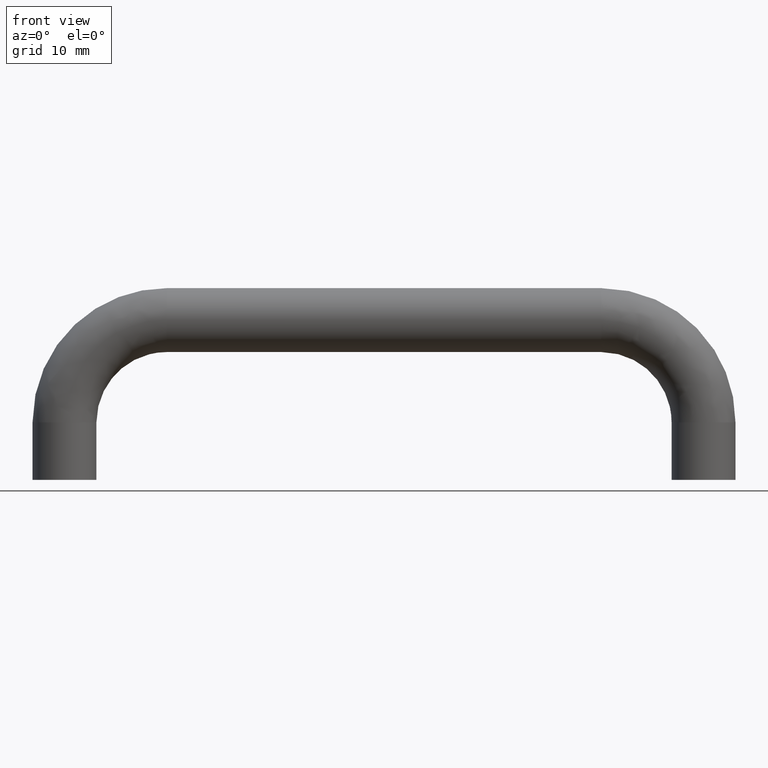
[diagram: clean part render]
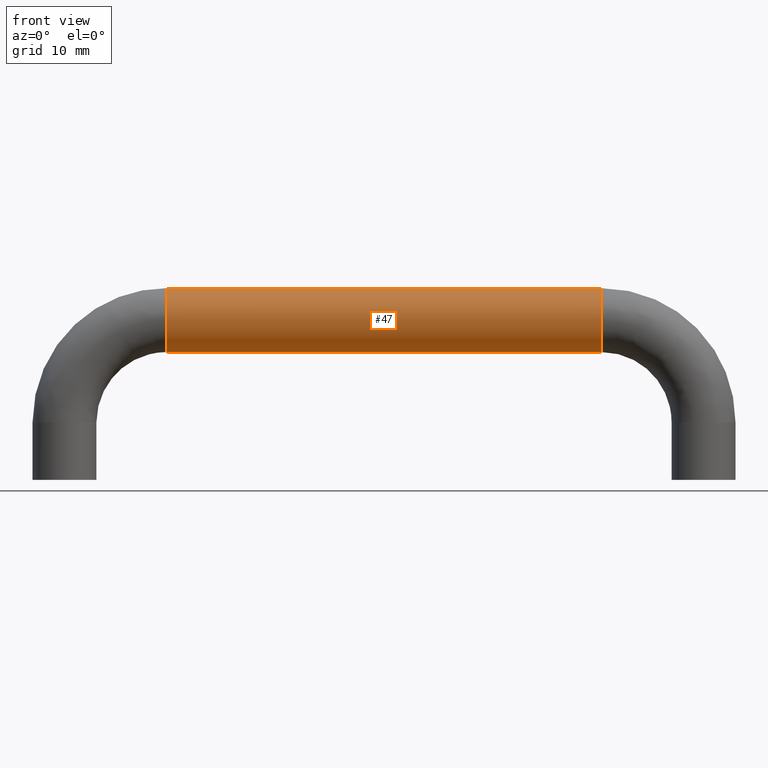
[diagram: same view with one face highlighted and labeled with its STEP entity id]
A machine part, front view. The second image highlights one B-rep face of the part: STEP entity #47.
In plain terms, the highlighted cylindrical surface (edge-blend (fillet) strip) has radius 5 mm, axis along (1, -0, -0).
Its self-contained STEP definition (entity closure, byte-faithful):
#47=ADVANCED_FACE('',(#131),#130,.T.);
#130=CYLINDRICAL_SURFACE('',#322,5.00000000000E+00);
#131=FACE_OUTER_BOUND('',#323,.T.);
#319=CARTESIAN_POINT('',(0.00000000000E+00,-9.33367966249E-11,5.00000000000E+00));
#320=DIRECTION('',(1.00000000000E+00,-0.00000000000E+00,-0.00000000000E+00));
#321=DIRECTION('',(-0.00000000000E+00,-0.00000000000E+00,-1.00000000000E+00));
#322=AXIS2_PLACEMENT_3D('',#319,#320,#321);
#323=EDGE_LOOP('',(#460,#461,#462,#463));
#460=ORIENTED_EDGE('',*,*,#521,.T.);
#461=ORIENTED_EDGE('',*,*,#523,.T.);
#462=ORIENTED_EDGE('',*,*,#525,.F.);
#463=ORIENTED_EDGE('',*,*,#524,.F.);
#521=EDGE_CURVE('',#623,#622,#656,.T.);
#523=EDGE_CURVE('',#622,#662,#670,.T.);
#524=EDGE_CURVE('',#623,#663,#676,.T.);
#525=EDGE_CURVE('',#663,#662,#682,.T.);
#622=VERTEX_POINT('',#822);
#623=VERTEX_POINT('',#823);
#656=CIRCLE('',#851,5.00000000000E+00);
#662=VERTEX_POINT('',#852);
#663=VERTEX_POINT('',#853);
#670=(BOUNDED_CURVE() B_SPLINE_CURVE(1,(#858,#859),.UNSPECIFIED.,.F.,.F.) B_SPLINE_CURVE_WITH_KNOTS((2,2),(8.33333332085E-02,9.16666666563E-01),.UNSPECIFIED.) CURVE() GEOMETRIC_REPRESENTATION_ITEM() RATIONAL_B_SPLINE_CURVE((1.00000000000E+00,1.00000000000E+00)) REPRESENTATION_ITEM('') );
#676=(BOUNDED_CURVE() B_SPLINE_CURVE(1,(#860,#861),.UNSPECIFIED.,.F.,.F.) B_SPLINE_CURVE_WITH_KNOTS((2,2),(8.33333333333E-02,9.16666666667E-01),.UNSPECIFIED.) CURVE() GEOMETRIC_REPRESENTATION_ITEM() RATIONAL_B_SPLINE_CURVE((7.50000000000E-01,7.50000000000E-01)) REPRESENTATION_ITEM('') );
#682=CIRCLE('',#865,5.00000000000E+00);
#822=CARTESIAN_POINT('',(-3.40000000000E+01,-9.33365977100E-11,-2.96059473233E-16));
#823=CARTESIAN_POINT('',(-3.40000000000E+01,-9.33361843217E-11,1.00000000000E+01));
#848=CARTESIAN_POINT('',(-3.40000000000E+01,-9.33367966249E-11,5.00000000000E+00));
#849=DIRECTION('',(1.00000000000E+00,0.00000000000E+00,0.00000000000E+00));
#850=DIRECTION('',(-0.00000000000E+00,-0.00000000000E+00,1.00000000000E+00));
#851=AXIS2_PLACEMENT_3D('',#848,#849,#850);
#852=CARTESIAN_POINT('',(3.40000000000E+01,-9.33376078430E-11,2.43592450410E-32));
#853=CARTESIAN_POINT('',(3.40000000000E+01,-9.33368937694E-11,1.00000000000E+01));
#858=CARTESIAN_POINT('',(-3.40000000102E+01,-9.33367966249E-11,0.00000000000E+00));
#859=CARTESIAN_POINT('',(3.39999999915E+01,-9.33367966249E-11,0.00000000000E+00));
#860=CARTESIAN_POINT('',(-3.40000000000E+01,-9.33371898289E-11,1.00000000000E+01));
#861=CARTESIAN_POINT('',(3.40000000000E+01,-9.33371898289E-11,1.00000000000E+01));
#862=CARTESIAN_POINT('',(3.40000000000E+01,-9.33367966249E-11,5.00000000000E+00));
#863=DIRECTION('',(1.00000000000E+00,0.00000000000E+00,-0.00000000000E+00));
#864=DIRECTION('',(-0.00000000000E+00,-3.97829799999E-17,-1.00000000000E+00));
#865=AXIS2_PLACEMENT_3D('',#862,#863,#864);